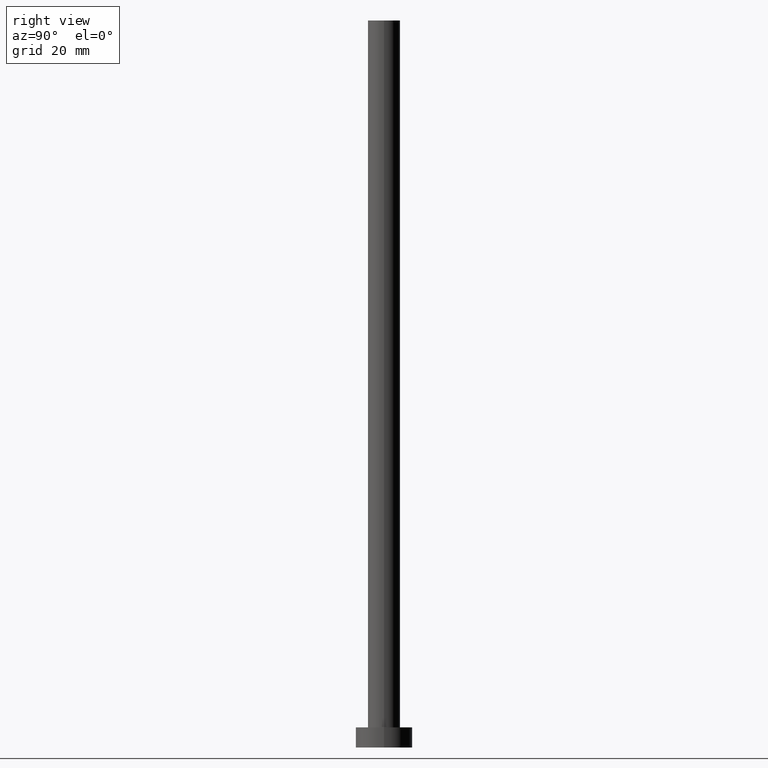
[diagram: clean part render]
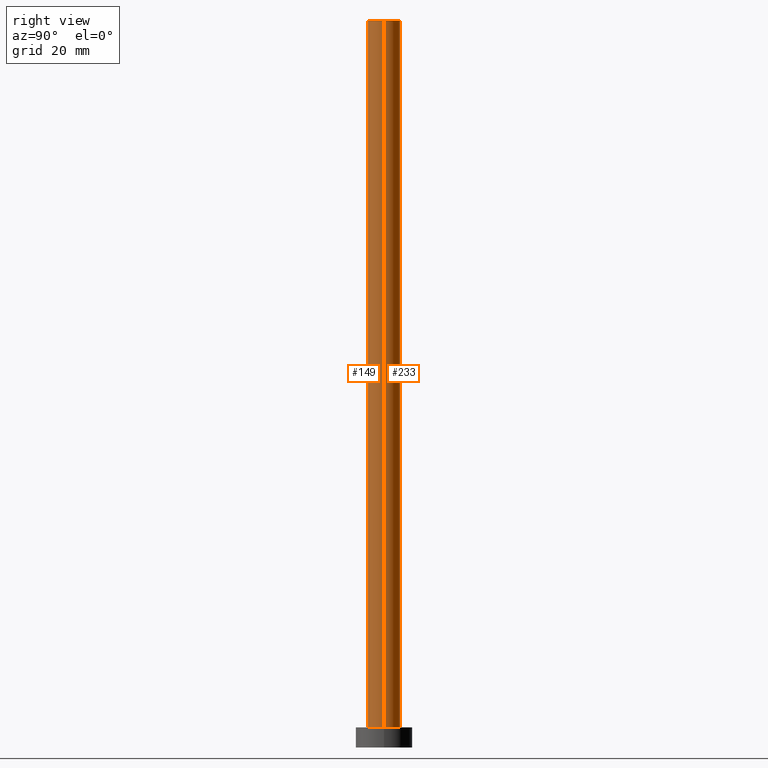
[diagram: same view with one multi-face feature highlighted, each face labeled with its STEP entity id]
A machine part, right view. The highlighted faces form ONE feature: a constant-radius fillet chain: 2 tangent blend faces with common blend radius 4 mm. The faces share edges in the B-rep.
Their STEP definitions:
[1] entity #233 (Cylinder):
#10 = EDGE_CURVE ( 'NONE', #231, #213, #184, .T. ) ;
#22 = EDGE_CURVE ( 'NONE', #179, #231, #189, .T. ) ;
#25 = CARTESIAN_POINT ( 'NONE',  ( 0.000000000000000000, 0.000000000000000000, 180.0000000000000000 ) ) ;
#27 = EDGE_CURVE ( 'NONE', #102, #213, #109, .T. ) ;
#34 = CIRCLE ( 'NONE', #167, 4.000000000000000000 ) ;
#57 = ORIENTED_EDGE ( 'NONE', *, *, #27, .F. ) ;
#73 = CARTESIAN_POINT ( 'NONE',  ( 0.000000000000000000, 0.000000000000000000, 180.0000000000000000 ) ) ;
#75 = AXIS2_PLACEMENT_3D ( 'NONE', #73, #210, #112 ) ;
#76 = FACE_OUTER_BOUND ( 'NONE', #255, .T. ) ;
#87 = DIRECTION ( 'NONE',  ( 0.000000000000000000, 0.000000000000000000, 1.000000000000000000 ) ) ;
#96 = VECTOR ( 'NONE', #245, 1000.000000000000000 ) ;
#102 = VERTEX_POINT ( 'NONE', #240 ) ;
#109 = LINE ( 'NONE', #202, #96 ) ;
#112 = DIRECTION ( 'NONE',  ( -1.000000000000000000, 0.000000000000000000, 0.000000000000000000 ) ) ;
#122 = CARTESIAN_POINT ( 'NONE',  ( 4.000000000000000000, 4.898587196589412829E-16, 180.0000000000000000 ) ) ;
#134 = AXIS2_PLACEMENT_3D ( 'NONE', #159, #234, #144 ) ;
#137 = CARTESIAN_POINT ( 'NONE',  ( 4.000000000000000000, 4.898587196589412829E-16, 5.000000000000000000 ) ) ;
#138 = VECTOR ( 'NONE', #166, 1000.000000000000000 ) ;
#142 = ORIENTED_EDGE ( 'NONE', *, *, #10, .T. ) ;
#144 = DIRECTION ( 'NONE',  ( 1.000000000000000000, 0.000000000000000000, 0.000000000000000000 ) ) ;
#156 = CYLINDRICAL_SURFACE ( 'NONE', #75, 4.000000000000000000 ) ;
#159 = CARTESIAN_POINT ( 'NONE',  ( 0.000000000000000000, 0.000000000000000000, 5.000000000000000000 ) ) ;
#166 = DIRECTION ( 'NONE',  ( -0.000000000000000000, -0.000000000000000000, -1.000000000000000000 ) ) ;
#167 = AXIS2_PLACEMENT_3D ( 'NONE', #25, #87, #194 ) ;
#168 = CARTESIAN_POINT ( 'NONE',  ( 4.000000000000000000, 4.898587196589412829E-16, 180.0000000000000000 ) ) ;
#179 = VERTEX_POINT ( 'NONE', #122 ) ;
#184 = CIRCLE ( 'NONE', #134, 4.000000000000000000 ) ;
#189 = LINE ( 'NONE', #168, #138 ) ;
#194 = DIRECTION ( 'NONE',  ( 1.000000000000000000, 0.000000000000000000, 0.000000000000000000 ) ) ;
#199 = ORIENTED_EDGE ( 'NONE', *, *, #216, .F. ) ;
#200 = CARTESIAN_POINT ( 'NONE',  ( -4.000000000000000000, 0.000000000000000000, 5.000000000000000000 ) ) ;
#202 = CARTESIAN_POINT ( 'NONE',  ( -4.000000000000000000, 0.000000000000000000, 180.0000000000000000 ) ) ;
#210 = DIRECTION ( 'NONE',  ( -0.000000000000000000, -0.000000000000000000, -1.000000000000000000 ) ) ;
#213 = VERTEX_POINT ( 'NONE', #200 ) ;
#216 = EDGE_CURVE ( 'NONE', #179, #102, #34, .T. ) ;
#217 = ORIENTED_EDGE ( 'NONE', *, *, #22, .T. ) ;
#231 = VERTEX_POINT ( 'NONE', #137 ) ;
#233 = ADVANCED_FACE ( 'NONE', ( #76 ), #156, .T. ) ;
#234 = DIRECTION ( 'NONE',  ( 0.000000000000000000, 0.000000000000000000, 1.000000000000000000 ) ) ;
#240 = CARTESIAN_POINT ( 'NONE',  ( -4.000000000000000000, 0.000000000000000000, 180.0000000000000000 ) ) ;
#245 = DIRECTION ( 'NONE',  ( -0.000000000000000000, -0.000000000000000000, -1.000000000000000000 ) ) ;
#255 = EDGE_LOOP ( 'NONE', ( #199, #217, #142, #57 ) ) ;
[2] entity #149 (Cylinder):
#2 = ORIENTED_EDGE ( 'NONE', *, *, #146, .T. ) ;
#4 = CYLINDRICAL_SURFACE ( 'NONE', #80, 4.000000000000000000 ) ;
#5 = DIRECTION ( 'NONE',  ( 0.000000000000000000, 0.000000000000000000, 1.000000000000000000 ) ) ;
#7 = CIRCLE ( 'NONE', #38, 4.000000000000000000 ) ;
#18 = ORIENTED_EDGE ( 'NONE', *, *, #27, .T. ) ;
#21 = ORIENTED_EDGE ( 'NONE', *, *, #22, .F. ) ;
#22 = EDGE_CURVE ( 'NONE', #179, #231, #189, .T. ) ;
#27 = EDGE_CURVE ( 'NONE', #102, #213, #109, .T. ) ;
#38 = AXIS2_PLACEMENT_3D ( 'NONE', #127, #5, #244 ) ;
#43 = DIRECTION ( 'NONE',  ( 0.000000000000000000, 0.000000000000000000, 1.000000000000000000 ) ) ;
#56 = AXIS2_PLACEMENT_3D ( 'NONE', #65, #43, #152 ) ;
#64 = EDGE_CURVE ( 'NONE', #102, #179, #7, .T. ) ;
#65 = CARTESIAN_POINT ( 'NONE',  ( 0.000000000000000000, 0.000000000000000000, 5.000000000000000000 ) ) ;
#67 = DIRECTION ( 'NONE',  ( -1.000000000000000000, 0.000000000000000000, 0.000000000000000000 ) ) ;
#71 = CIRCLE ( 'NONE', #56, 4.000000000000000000 ) ;
#80 = AXIS2_PLACEMENT_3D ( 'NONE', #150, #126, #67 ) ;
#82 = ORIENTED_EDGE ( 'NONE', *, *, #64, .F. ) ;
#96 = VECTOR ( 'NONE', #245, 1000.000000000000000 ) ;
#102 = VERTEX_POINT ( 'NONE', #240 ) ;
#105 = EDGE_LOOP ( 'NONE', ( #21, #82, #18, #2 ) ) ;
#109 = LINE ( 'NONE', #202, #96 ) ;
#110 = FACE_OUTER_BOUND ( 'NONE', #105, .T. ) ;
#122 = CARTESIAN_POINT ( 'NONE',  ( 4.000000000000000000, 4.898587196589412829E-16, 180.0000000000000000 ) ) ;
#126 = DIRECTION ( 'NONE',  ( -0.000000000000000000, -0.000000000000000000, -1.000000000000000000 ) ) ;
#127 = CARTESIAN_POINT ( 'NONE',  ( 0.000000000000000000, 0.000000000000000000, 180.0000000000000000 ) ) ;
#137 = CARTESIAN_POINT ( 'NONE',  ( 4.000000000000000000, 4.898587196589412829E-16, 5.000000000000000000 ) ) ;
#138 = VECTOR ( 'NONE', #166, 1000.000000000000000 ) ;
#146 = EDGE_CURVE ( 'NONE', #213, #231, #71, .T. ) ;
#149 = ADVANCED_FACE ( 'NONE', ( #110 ), #4, .T. ) ;
#150 = CARTESIAN_POINT ( 'NONE',  ( 0.000000000000000000, 0.000000000000000000, 180.0000000000000000 ) ) ;
#152 = DIRECTION ( 'NONE',  ( 1.000000000000000000, 0.000000000000000000, 0.000000000000000000 ) ) ;
#166 = DIRECTION ( 'NONE',  ( -0.000000000000000000, -0.000000000000000000, -1.000000000000000000 ) ) ;
#168 = CARTESIAN_POINT ( 'NONE',  ( 4.000000000000000000, 4.898587196589412829E-16, 180.0000000000000000 ) ) ;
#179 = VERTEX_POINT ( 'NONE', #122 ) ;
#189 = LINE ( 'NONE', #168, #138 ) ;
#200 = CARTESIAN_POINT ( 'NONE',  ( -4.000000000000000000, 0.000000000000000000, 5.000000000000000000 ) ) ;
#202 = CARTESIAN_POINT ( 'NONE',  ( -4.000000000000000000, 0.000000000000000000, 180.0000000000000000 ) ) ;
#213 = VERTEX_POINT ( 'NONE', #200 ) ;
#231 = VERTEX_POINT ( 'NONE', #137 ) ;
#240 = CARTESIAN_POINT ( 'NONE',  ( -4.000000000000000000, 0.000000000000000000, 180.0000000000000000 ) ) ;
#244 = DIRECTION ( 'NONE',  ( 1.000000000000000000, 0.000000000000000000, 0.000000000000000000 ) ) ;
#245 = DIRECTION ( 'NONE',  ( -0.000000000000000000, -0.000000000000000000, -1.000000000000000000 ) ) ;